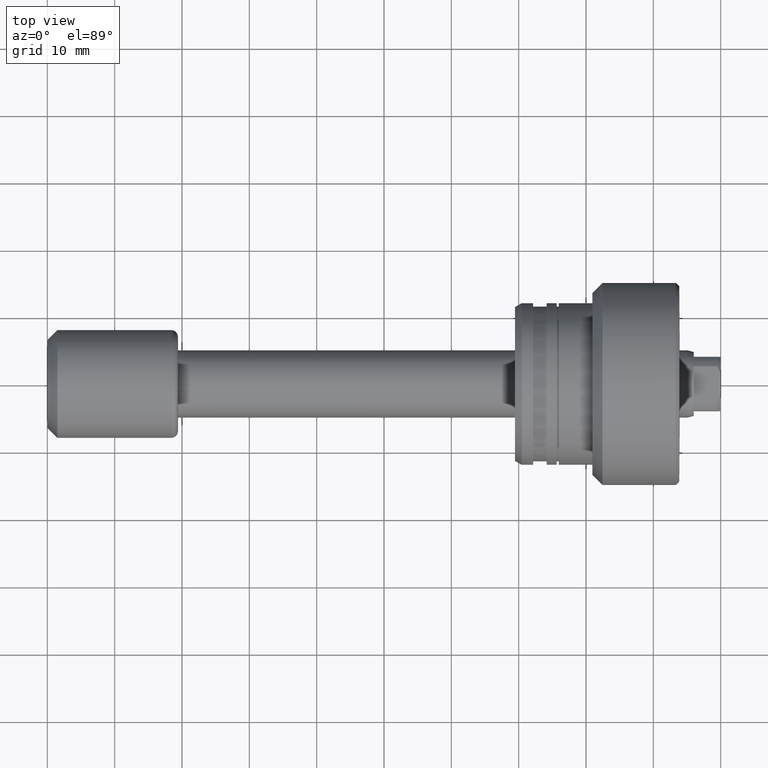
[diagram: clean part render]
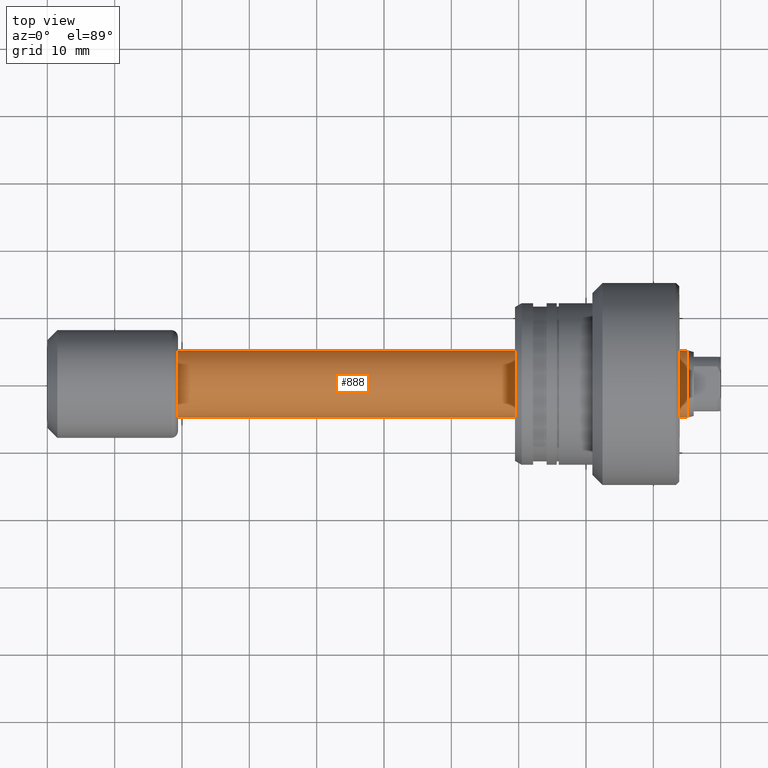
[diagram: same view with one face highlighted and labeled with its STEP entity id]
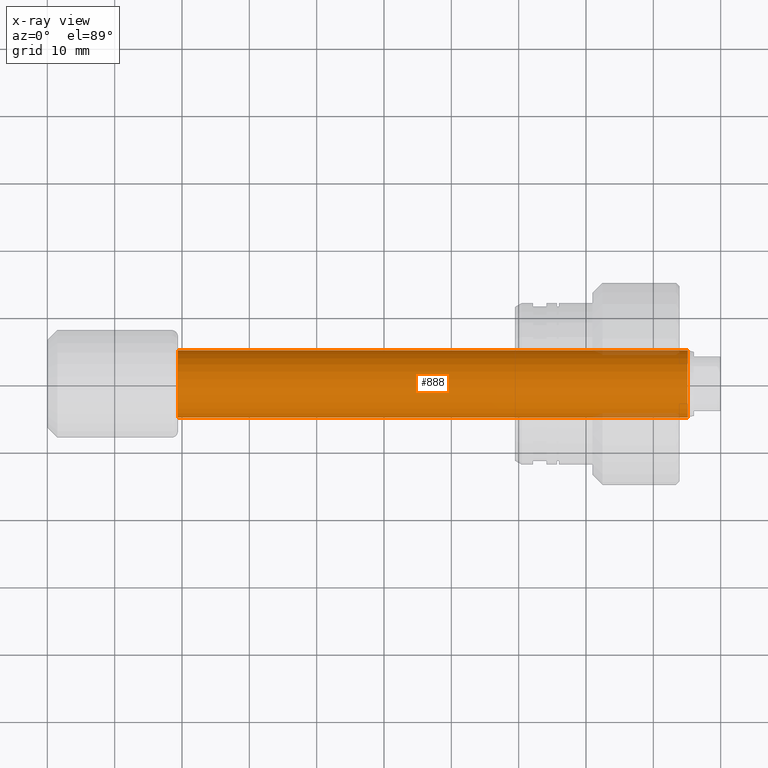
[diagram: x-ray of the same camera — body ghosted, the highlighted face saturated]
A machine part, top view. The second image highlights one B-rep face of the part: STEP entity #888.
The next image is the same camera in x-ray: the body ghosted, the highlighted face saturated — about 2% of this face is hidden behind the body in this view.
In plain terms, the highlighted cylindrical surface (edge-blend (fillet) strip) has radius 5 mm, axis along (-1, -0, -0).
Its self-contained STEP definition (entity closure, byte-faithful):
#80 = CIRCLE ( 'NONE', #1787, 5.000000000000192735 ) ;
#124 = VECTOR ( 'NONE', #2313, 1000.000000000000000 ) ;
#155 = VERTEX_POINT ( 'NONE', #1165 ) ;
#267 = CARTESIAN_POINT ( 'NONE',  ( 5.347711610345418829E-17, -5.000000000000084377, 0.000000000000000000 ) ) ;
#318 = AXIS2_PLACEMENT_3D ( 'NONE', #2217, #1065, #1290 ) ;
#327 = DIRECTION ( 'NONE',  ( -1.000000000000000000, -1.069542322069065801E-17, -0.000000000000000000 ) ) ;
#387 = ORIENTED_EDGE ( 'NONE', *, *, #421, .F. ) ;
#421 = EDGE_CURVE ( 'NONE', #1134, #2358, #874, .T. ) ;
#436 = EDGE_CURVE ( 'NONE', #1806, #2358, #1432, .T. ) ;
#455 = EDGE_CURVE ( 'NONE', #155, #1806, #80, .T. ) ;
#459 = ORIENTED_EDGE ( 'NONE', *, *, #455, .T. ) ;
#496 = CYLINDRICAL_SURFACE ( 'NONE', #601, 5.000000000000084377 ) ;
#506 = CARTESIAN_POINT ( 'NONE',  ( 0.000000000000000000, 0.000000000000000000, 0.000000000000000000 ) ) ;
#528 = DIRECTION ( 'NONE',  ( 0.000000000000000000, -1.000000000000000000, 0.000000000000000000 ) ) ;
#601 = AXIS2_PLACEMENT_3D ( 'NONE', #506, #1470, #889 ) ;
#623 = LINE ( 'NONE', #267, #124 ) ;
#686 = FACE_OUTER_BOUND ( 'NONE', #1567, .T. ) ;
#874 = CIRCLE ( 'NONE', #318, 4.999999999999976019 ) ;
#888 = ADVANCED_FACE ( 'NONE', ( #686 ), #496, .T. ) ;
#889 = DIRECTION ( 'NONE',  ( 1.069542322069065647E-17, -1.000000000000000000, 0.000000000000000000 ) ) ;
#980 = CARTESIAN_POINT ( 'NONE',  ( 19.40000000000006253, 4.999999999999976019, 6.123233995736802767E-16 ) ) ;
#1028 = CARTESIAN_POINT ( 'NONE',  ( 19.40000000000006253, -4.999999999999976019, 0.000000000000000000 ) ) ;
#1059 = CARTESIAN_POINT ( 'NONE',  ( -5.347711610345418829E-17, 5.000000000000084377, 6.123233995736868834E-16 ) ) ;
#1065 = DIRECTION ( 'NONE',  ( -1.000000000000000000, -1.069542322069065801E-17, -0.000000000000000000 ) ) ;
#1074 = DIRECTION ( 'NONE',  ( -1.000000000000000000, -1.069542322069065801E-17, -0.000000000000000000 ) ) ;
#1134 = VERTEX_POINT ( 'NONE', #1028 ) ;
#1165 = CARTESIAN_POINT ( 'NONE',  ( 95.06675751232383220, -5.000000000000191847, 0.000000000000000000 ) ) ;
#1290 = DIRECTION ( 'NONE',  ( 0.000000000000000000, -1.000000000000000000, 0.000000000000000000 ) ) ;
#1432 = LINE ( 'NONE', #1059, #2212 ) ;
#1470 = DIRECTION ( 'NONE',  ( -1.000000000000000000, -1.069542322069065801E-17, -0.000000000000000000 ) ) ;
#1567 = EDGE_LOOP ( 'NONE', ( #459, #1578, #387, #1672 ) ) ;
#1578 = ORIENTED_EDGE ( 'NONE', *, *, #436, .T. ) ;
#1609 = CARTESIAN_POINT ( 'NONE',  ( 95.06675751232383220, 5.000000000000192735, 6.123233995737001955E-16 ) ) ;
#1672 = ORIENTED_EDGE ( 'NONE', *, *, #2032, .F. ) ;
#1787 = AXIS2_PLACEMENT_3D ( 'NONE', #1817, #327, #528 ) ;
#1806 = VERTEX_POINT ( 'NONE', #1609 ) ;
#1817 = CARTESIAN_POINT ( 'NONE',  ( 95.06675751232383220, 1.016779205813076443E-15, 0.000000000000000000 ) ) ;
#2032 = EDGE_CURVE ( 'NONE', #155, #1134, #623, .T. ) ;
#2212 = VECTOR ( 'NONE', #1074, 1000.000000000000000 ) ;
#2217 = CARTESIAN_POINT ( 'NONE',  ( 19.40000000000006253, 2.074912104813994331E-16, 0.000000000000000000 ) ) ;
#2313 = DIRECTION ( 'NONE',  ( -1.000000000000000000, -1.069542322069065801E-17, -0.000000000000000000 ) ) ;
#2358 = VERTEX_POINT ( 'NONE', #980 ) ;